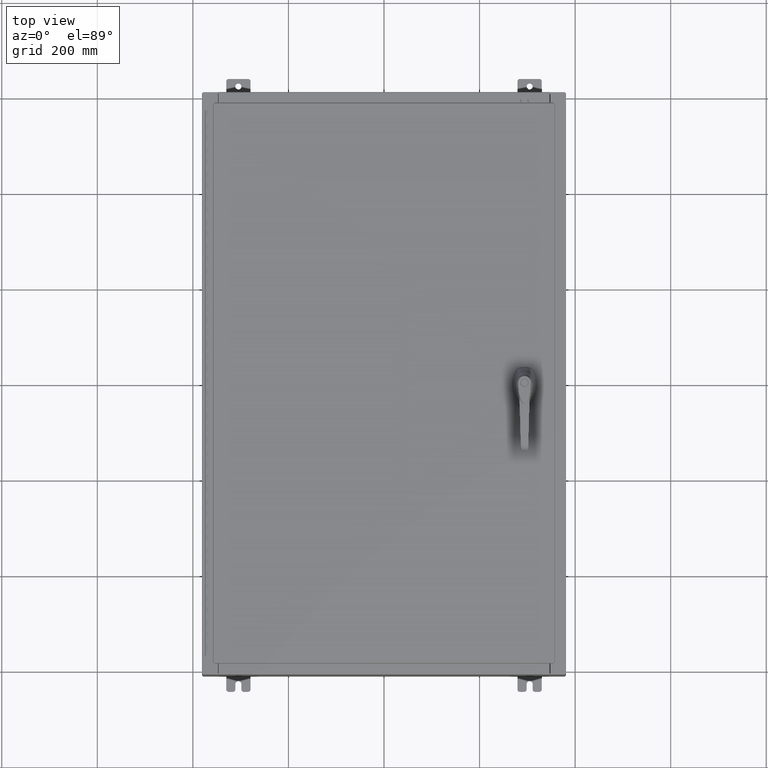
[diagram: clean part render]
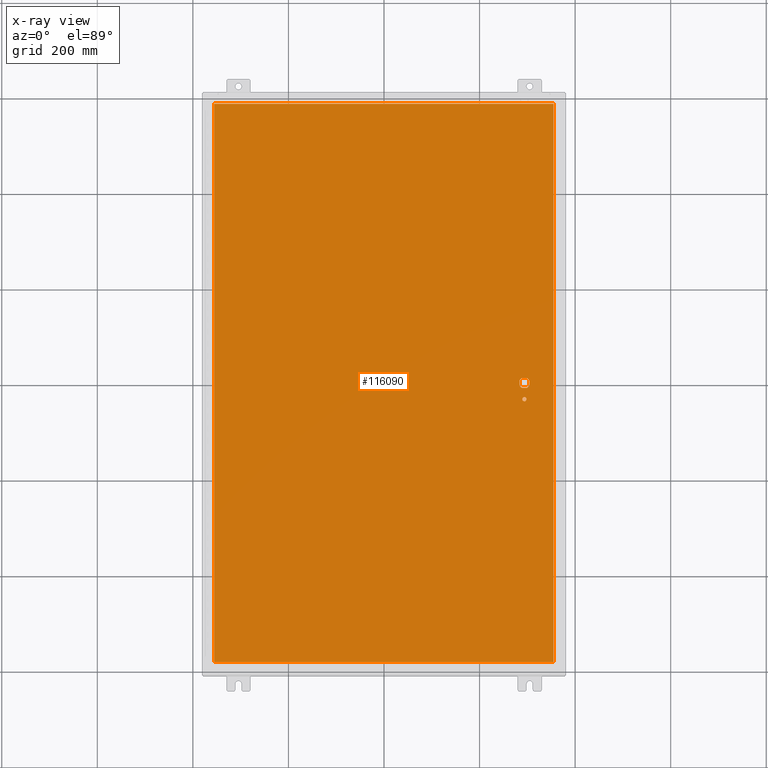
[diagram: x-ray — body ghosted, one internal face saturated and labeled with its STEP entity id]
A machine part, top view, then the same camera in x-ray: the body is ghosted and one INTERNAL B-rep face — a face not visible from any outside direction — is saturated and labeled: STEP entity #116090.
In plain terms, the highlighted planar face has unit normal (0, 0, -1).
Its self-contained STEP definition (entity closure, byte-faithful):
#1405 = CARTESIAN_POINT ( 'NONE',  ( 0.0000000000000000000, -0.4029999999999252000, -0.07470000000000003000 ) ) ;
#2157 = CIRCLE ( 'NONE', #36340, 0.4499999999999168000 ) ;
#2605 = CARTESIAN_POINT ( 'NONE',  ( 13.99029999999999800, -23.00630000000000300, -0.07470000000000019700 ) ) ;
#2761 = DIRECTION ( 'NONE',  ( -1.000000000000000000, -1.776356839400246700E-015, 0.0000000000000000000 ) ) ;
#4580 = AXIS2_PLACEMENT_3D ( 'NONE', #125935, #64157, #2761 ) ;
#4988 = VERTEX_POINT ( 'NONE', #101710 ) ;
#4998 = DIRECTION ( 'NONE',  ( -0.0000000000000000000, -0.0000000000000000000, 1.000000000000000000 ) ) ;
#5115 = DIRECTION ( 'NONE',  ( -0.0000000000000000000, -0.0000000000000000000, 1.000000000000000000 ) ) ;
#5124 = VERTEX_POINT ( 'NONE', #43614 ) ;
#6387 = ORIENTED_EDGE ( 'NONE', *, *, #35031, .F. ) ;
#6504 = DIRECTION ( 'NONE',  ( 0.0000000000000000000, 0.0000000000000000000, -1.000000000000000000 ) ) ;
#7928 = VECTOR ( 'NONE', #77377, 39.37007874015748100 ) ;
#8068 = LINE ( 'NONE', #69481, #110954 ) ;
#8208 = LINE ( 'NONE', #1405, #59499 ) ;
#9953 = VERTEX_POINT ( 'NONE', #79432 ) ;
#11671 = DIRECTION ( 'NONE',  ( 0.0000000000000000000, -1.000000000000000000, 0.0000000000000000000 ) ) ;
#11733 = DIRECTION ( 'NONE',  ( 1.000000000000000000, 0.0000000000000000000, 0.0000000000000000000 ) ) ;
#12212 = AXIS2_PLACEMENT_3D ( 'NONE', #66416, #4998, #76757 ) ;
#15012 = EDGE_CURVE ( 'NONE', #122568, #80388, #84881, .T. ) ;
#15430 = CARTESIAN_POINT ( 'NONE',  ( 13.99029999999999800, 23.00630000000001000, -0.07469999999999804600 ) ) ;
#15550 = CIRCLE ( 'NONE', #116563, 0.1715000000000011500 ) ;
#16484 = EDGE_CURVE ( 'NONE', #9953, #27374, #15550, .T. ) ;
#16804 = CARTESIAN_POINT ( 'NONE',  ( 0.0000000000000000000, 0.0000000000000000000, -0.07470000000000000300 ) ) ;
#17569 = LINE ( 'NONE', #15430, #7928 ) ;
#19679 = EDGE_LOOP ( 'NONE', ( #71016, #6387, #57943, #94193 ) ) ;
#23998 = DIRECTION ( 'NONE',  ( -1.000000000000000000, 0.0000000000000000000, 0.0000000000000000000 ) ) ;
#24060 = CARTESIAN_POINT ( 'NONE',  ( 11.74949999999999900, -1.338000000000000100, -0.07470000000000003000 ) ) ;
#25888 = DIRECTION ( 'NONE',  ( -0.0000000000000000000, -0.0000000000000000000, 1.000000000000000000 ) ) ;
#26106 = CARTESIAN_POINT ( 'NONE',  ( 11.37777262924368800, -0.4029999999999250300, -0.07470000000000003000 ) ) ;
#26633 = DIRECTION ( 'NONE',  ( 1.000000000000000000, -0.0000000000000000000, -0.0000000000000000000 ) ) ;
#26691 = VECTOR ( 'NONE', #26989, 39.37007874015748100 ) ;
#26989 = DIRECTION ( 'NONE',  ( 0.0000000000000000000, -1.000000000000000000, 0.0000000000000000000 ) ) ;
#27374 = VERTEX_POINT ( 'NONE', #24060 ) ;
#29078 = FACE_BOUND ( 'NONE', #69793, .T. ) ;
#30903 = CIRCLE ( 'NONE', #129998, 0.1715000000000011500 ) ;
#33792 = CARTESIAN_POINT ( 'NONE',  ( 11.77822737075630700, -0.4029999999999252000, -0.07470000000000003000 ) ) ;
#34745 = DIRECTION ( 'NONE',  ( -0.0000000000000000000, -0.0000000000000000000, 1.000000000000000000 ) ) ;
#35031 = EDGE_CURVE ( 'NONE', #96393, #72908, #91396, .T. ) ;
#35297 = ORIENTED_EDGE ( 'NONE', *, *, #46207, .T. ) ;
#35801 = VECTOR ( 'NONE', #74394, 39.37007874015748100 ) ;
#36340 = AXIS2_PLACEMENT_3D ( 'NONE', #87441, #25888, #97773 ) ;
#39957 = CARTESIAN_POINT ( 'NONE',  ( 11.77822737075630700, 0.4029999999999250300, -0.07470000000000003000 ) ) ;
#40476 = EDGE_CURVE ( 'NONE', #72908, #5124, #90516, .T. ) ;
#40870 = EDGE_CURVE ( 'NONE', #27374, #9953, #30903, .T. ) ;
#43614 = CARTESIAN_POINT ( 'NONE',  ( 13.99029999999999800, 23.00630000000000300, -0.07470000000000000300 ) ) ;
#44624 = VECTOR ( 'NONE', #11671, 39.37007874015748100 ) ;
#46207 = EDGE_CURVE ( 'NONE', #71754, #122568, #2157, .T. ) ;
#48530 = EDGE_CURVE ( 'NONE', #115483, #90309, #8208, .T. ) ;
#50033 = CARTESIAN_POINT ( 'NONE',  ( 11.98099999999992500, -0.2002273707563067300, -0.07470000000000003000 ) ) ;
#52465 = CARTESIAN_POINT ( 'NONE',  ( 11.17500000000007000, 0.0000000000000000000, -0.07470000000000003000 ) ) ;
#52889 = EDGE_CURVE ( 'NONE', #97897, #77204, #71904, .T. ) ;
#53786 = VERTEX_POINT ( 'NONE', #50033 ) ;
#54061 = EDGE_CURVE ( 'NONE', #77204, #115483, #121706, .T. ) ;
#55848 = AXIS2_PLACEMENT_3D ( 'NONE', #96397, #34745, #106727 ) ;
#57481 = VECTOR ( 'NONE', #23998, 39.37007874015748100 ) ;
#57943 = ORIENTED_EDGE ( 'NONE', *, *, #119936, .F. ) ;
#58932 = EDGE_CURVE ( 'NONE', #90309, #53786, #112950, .T. ) ;
#58980 = CARTESIAN_POINT ( 'NONE',  ( 11.57799999999999800, -1.338000000000000100, -0.07470000000000003000 ) ) ;
#59499 = VECTOR ( 'NONE', #11733, 39.37007874015748100 ) ;
#63622 = CARTESIAN_POINT ( 'NONE',  ( -13.99029999999999800, -23.00630000000000000, -0.07470000000000000300 ) ) ;
#64157 = DIRECTION ( 'NONE',  ( -0.0000000000000000000, -0.0000000000000000000, 1.000000000000000000 ) ) ;
#66416 = CARTESIAN_POINT ( 'NONE',  ( 11.57799999999999800, 0.0000000000000000000, -0.07470000000000003000 ) ) ;
#66539 = CARTESIAN_POINT ( 'NONE',  ( 11.57799999999999800, -1.338000000000000100, -0.07470000000000003000 ) ) ;
#67422 = CARTESIAN_POINT ( 'NONE',  ( -13.99029999999999800, -23.00630000000000300, -0.07469999999999804600 ) ) ;
#69314 = DIRECTION ( 'NONE',  ( -1.000000000000000000, 0.0000000000000000000, 0.0000000000000000000 ) ) ;
#69481 = CARTESIAN_POINT ( 'NONE',  ( 11.98099999999992500, 6.538620706741752400E-014, -0.07470000000000003000 ) ) ;
#69793 = EDGE_LOOP ( 'NONE', ( #90452, #123229 ) ) ;
#71016 = ORIENTED_EDGE ( 'NONE', *, *, #40476, .F. ) ;
#71220 = EDGE_CURVE ( 'NONE', #5124, #4988, #17569, .T. ) ;
#71754 = VERTEX_POINT ( 'NONE', #100345 ) ;
#71871 = ORIENTED_EDGE ( 'NONE', *, *, #54061, .T. ) ;
#71904 = LINE ( 'NONE', #52465, #44624 ) ;
#72908 = VERTEX_POINT ( 'NONE', #106905 ) ;
#74043 = FACE_OUTER_BOUND ( 'NONE', #19679, .T. ) ;
#74394 = DIRECTION ( 'NONE',  ( 0.0000000000000000000, 1.000000000000000000, 0.0000000000000000000 ) ) ;
#74410 = ORIENTED_EDGE ( 'NONE', *, *, #86231, .F. ) ;
#76221 = CARTESIAN_POINT ( 'NONE',  ( 11.37777262924368800, 0.4029999999999252000, -0.07470000000000003000 ) ) ;
#76757 = DIRECTION ( 'NONE',  ( -1.000000000000000000, -5.329070518200740300E-015, 0.0000000000000000000 ) ) ;
#76882 = DIRECTION ( 'NONE',  ( -1.000000000000000000, 0.0000000000000000000, 0.0000000000000000000 ) ) ;
#77204 = VERTEX_POINT ( 'NONE', #110864 ) ;
#77377 = DIRECTION ( 'NONE',  ( -1.000000000000000000, -0.0000000000000000000, -0.0000000000000000000 ) ) ;
#78162 = CARTESIAN_POINT ( 'NONE',  ( -13.99029999999999800, 23.00630000000000300, -0.07470000000000019700 ) ) ;
#79432 = CARTESIAN_POINT ( 'NONE',  ( 11.40649999999999600, -1.338000000000000100, -0.07470000000000003000 ) ) ;
#80388 = VERTEX_POINT ( 'NONE', #76221 ) ;
#83443 = EDGE_CURVE ( 'NONE', #80388, #97897, #107975, .T. ) ;
#84572 = LINE ( 'NONE', #78162, #26691 ) ;
#84881 = LINE ( 'NONE', #85083, #57481 ) ;
#85083 = CARTESIAN_POINT ( 'NONE',  ( 0.0000000000000000000, 0.4029999999999252000, -0.07470000000000003000 ) ) ;
#86231 = EDGE_CURVE ( 'NONE', #71754, #53786, #8068, .T. ) ;
#87441 = CARTESIAN_POINT ( 'NONE',  ( 11.57799999999999800, 0.0000000000000000000, -0.07470000000000003000 ) ) ;
#88167 = VECTOR ( 'NONE', #26633, 39.37007874015748100 ) ;
#90309 = VERTEX_POINT ( 'NONE', #33792 ) ;
#90452 = ORIENTED_EDGE ( 'NONE', *, *, #40870, .T. ) ;
#90516 = LINE ( 'NONE', #2605, #35801 ) ;
#91396 = LINE ( 'NONE', #67422, #88167 ) ;
#94193 = ORIENTED_EDGE ( 'NONE', *, *, #71220, .F. ) ;
#95257 = ORIENTED_EDGE ( 'NONE', *, *, #15012, .T. ) ;
#96393 = VERTEX_POINT ( 'NONE', #63622 ) ;
#96397 = CARTESIAN_POINT ( 'NONE',  ( 11.57799999999999800, 0.0000000000000000000, -0.07470000000000003000 ) ) ;
#97773 = DIRECTION ( 'NONE',  ( -1.000000000000000000, -5.329070518200740300E-015, 0.0000000000000000000 ) ) ;
#97897 = VERTEX_POINT ( 'NONE', #106513 ) ;
#99033 = PLANE ( 'NONE',  #104449 ) ;
#100345 = CARTESIAN_POINT ( 'NONE',  ( 11.98099999999992500, 0.2002273707563075900, -0.07470000000000003000 ) ) ;
#101710 = CARTESIAN_POINT ( 'NONE',  ( -13.99029999999999800, 23.00630000000000300, -0.07470000000000000300 ) ) ;
#104449 = AXIS2_PLACEMENT_3D ( 'NONE', #16804, #6504, #109402 ) ;
#106042 = EDGE_LOOP ( 'NONE', ( #130438, #74410, #35297, #95257, #117701, #126758, #71871, #132158 ) ) ;
#106513 = CARTESIAN_POINT ( 'NONE',  ( 11.17500000000007000, 0.2002273707563075900, -0.07470000000000003000 ) ) ;
#106727 = DIRECTION ( 'NONE',  ( -1.000000000000000000, -1.776356839400246700E-015, 0.0000000000000000000 ) ) ;
#106905 = CARTESIAN_POINT ( 'NONE',  ( 13.99029999999999800, -23.00630000000000000, -0.07470000000000000300 ) ) ;
#107975 = CIRCLE ( 'NONE', #12212, 0.4499999999999168000 ) ;
#109402 = DIRECTION ( 'NONE',  ( -1.000000000000000000, 0.0000000000000000000, -0.0000000000000000000 ) ) ;
#110864 = CARTESIAN_POINT ( 'NONE',  ( 11.17500000000007000, -0.2002273707563079800, -0.07470000000000003000 ) ) ;
#110947 = DIRECTION ( 'NONE',  ( 5.457491617345625000E-015, -1.000000000000000000, 0.0000000000000000000 ) ) ;
#110954 = VECTOR ( 'NONE', #110947, 39.37007874015748100 ) ;
#112950 = CIRCLE ( 'NONE', #4580, 0.4499999999999168000 ) ;
#115483 = VERTEX_POINT ( 'NONE', #26106 ) ;
#116090 = ADVANCED_FACE ( 'NONE', ( #29078, #74043, #128887 ), #99033, .T. ) ;
#116563 = AXIS2_PLACEMENT_3D ( 'NONE', #66539, #5115, #76882 ) ;
#117701 = ORIENTED_EDGE ( 'NONE', *, *, #83443, .T. ) ;
#119936 = EDGE_CURVE ( 'NONE', #4988, #96393, #84572, .T. ) ;
#121706 = CIRCLE ( 'NONE', #55848, 0.4499999999999168000 ) ;
#122568 = VERTEX_POINT ( 'NONE', #39957 ) ;
#123229 = ORIENTED_EDGE ( 'NONE', *, *, #16484, .T. ) ;
#125935 = CARTESIAN_POINT ( 'NONE',  ( 11.57799999999999800, 0.0000000000000000000, -0.07470000000000003000 ) ) ;
#126758 = ORIENTED_EDGE ( 'NONE', *, *, #52889, .T. ) ;
#128887 = FACE_BOUND ( 'NONE', #106042, .T. ) ;
#129998 = AXIS2_PLACEMENT_3D ( 'NONE', #58980, #131055, #69314 ) ;
#130438 = ORIENTED_EDGE ( 'NONE', *, *, #58932, .T. ) ;
#131055 = DIRECTION ( 'NONE',  ( -0.0000000000000000000, -0.0000000000000000000, 1.000000000000000000 ) ) ;
#132158 = ORIENTED_EDGE ( 'NONE', *, *, #48530, .T. ) ;